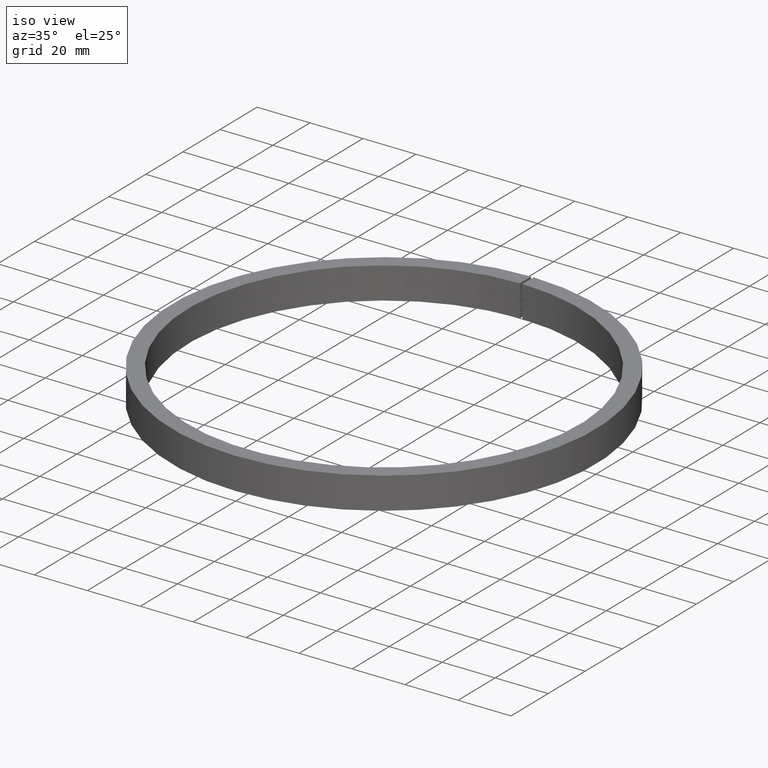
[diagram: clean part render]
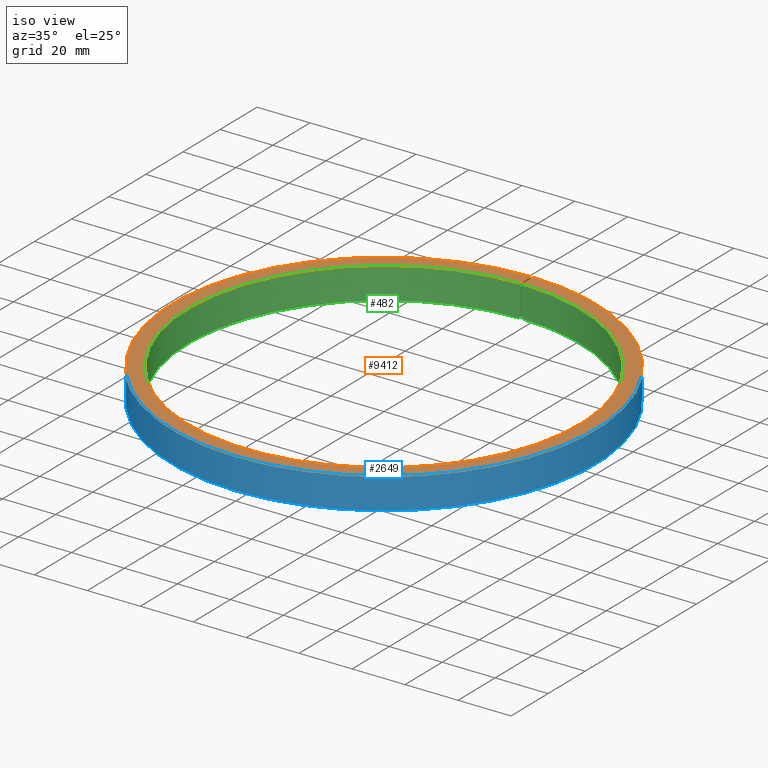
[diagram: same view with three faces highlighted in distinct colors, each labeled with its STEP entity id]
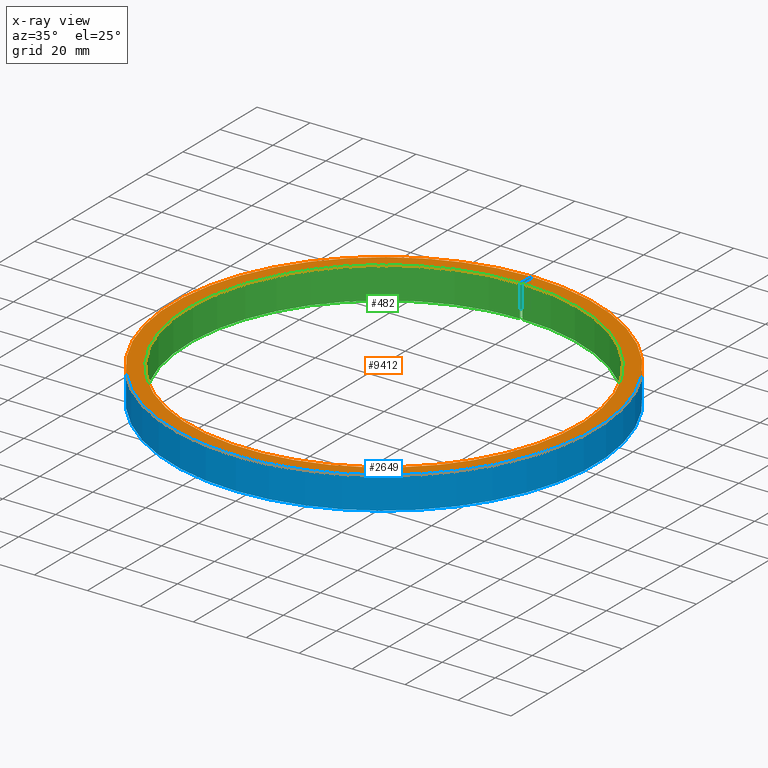
[diagram: x-ray of the same camera — body ghosted, the three highlighted faces saturated]
A machine part, iso view with three faces highlighted in distinct colors.
The next image is the same camera in x-ray (body ghosted, the three faces saturated) — at least one of them is partly hidden behind the body in this view.
Their STEP definitions:

[orange] entity #9412 — the highlighted planar face has unit normal (-0, 0, -1).
#108 = EDGE_CURVE ( 'NONE', #1116, #1750, #9698, .T. ) ;
#815 = ORIENTED_EDGE ( 'NONE', *, *, #1857, .T. ) ;
#991 = DIRECTION ( 'NONE',  ( -0.0000000000000000000, 0.0000000000000000000, -1.000000000000000000 ) ) ;
#1067 = PLANE ( 'NONE',  #3855 ) ;
#1116 = VERTEX_POINT ( 'NONE', #7466 ) ;
#1322 = VECTOR ( 'NONE', #9336, 1000.000000000000000 ) ;
#1672 = DIRECTION ( 'NONE',  ( -0.0000000000000000000, -0.0000000000000000000, -1.000000000000000000 ) ) ;
#1750 = VERTEX_POINT ( 'NONE', #8199 ) ;
#1857 = EDGE_CURVE ( 'NONE', #9003, #5778, #6665, .T. ) ;
#2479 = AXIS2_PLACEMENT_3D ( 'NONE', #10371, #1672, #9623 ) ;
#2637 = AXIS2_PLACEMENT_3D ( 'NONE', #8223, #2783, #10044 ) ;
#2783 = DIRECTION ( 'NONE',  ( -0.0000000000000000000, -0.0000000000000000000, -1.000000000000000000 ) ) ;
#3622 = CARTESIAN_POINT ( 'NONE',  ( -0.5000000000000000000, 79.99843748474091900, 5.999999999999999100 ) ) ;
#3673 = VECTOR ( 'NONE', #8370, 1000.000000000000000 ) ;
#3779 = CARTESIAN_POINT ( 'NONE',  ( 0.0000000000000000000, -74.00000000000001400, 5.999999999999998200 ) ) ;
#3855 = AXIS2_PLACEMENT_3D ( 'NONE', #3779, #991, #4718 ) ;
#4149 = ORIENTED_EDGE ( 'NONE', *, *, #108, .F. ) ;
#4188 = CARTESIAN_POINT ( 'NONE',  ( -0.5000000000000000000, 73.99831079153092600, 5.999999999999999100 ) ) ;
#4718 = DIRECTION ( 'NONE',  ( -1.000000000000000000, 0.0000000000000000000, 0.0000000000000000000 ) ) ;
#5679 = CARTESIAN_POINT ( 'NONE',  ( 0.5000000000000000000, 0.0000000000000000000, 5.999999999999999100 ) ) ;
#5778 = VERTEX_POINT ( 'NONE', #3622 ) ;
#5857 = ORIENTED_EDGE ( 'NONE', *, *, #9395, .T. ) ;
#6302 = FACE_OUTER_BOUND ( 'NONE', #7607, .T. ) ;
#6665 = LINE ( 'NONE', #8427, #1322 ) ;
#7289 = CIRCLE ( 'NONE', #2479, 80.00000000000000000 ) ;
#7466 = CARTESIAN_POINT ( 'NONE',  ( 0.5000000000000000000, 73.99831079153092600, 5.999999999999999100 ) ) ;
#7607 = EDGE_LOOP ( 'NONE', ( #9210, #4149, #5857, #815 ) ) ;
#7631 = EDGE_CURVE ( 'NONE', #1750, #5778, #7289, .T. ) ;
#8199 = CARTESIAN_POINT ( 'NONE',  ( 0.5000000000000000000, 79.99843748474091900, 5.999999999999998200 ) ) ;
#8223 = CARTESIAN_POINT ( 'NONE',  ( 0.0000000000000000000, 0.0000000000000000000, 5.999999999999999100 ) ) ;
#8370 = DIRECTION ( 'NONE',  ( 0.0000000000000000000, 1.000000000000000000, -0.0000000000000000000 ) ) ;
#8427 = CARTESIAN_POINT ( 'NONE',  ( -0.5000000000000000000, 0.0000000000000000000, 5.999999999999999100 ) ) ;
#9003 = VERTEX_POINT ( 'NONE', #4188 ) ;
#9210 = ORIENTED_EDGE ( 'NONE', *, *, #7631, .F. ) ;
#9336 = DIRECTION ( 'NONE',  ( 0.0000000000000000000, 1.000000000000000000, -0.0000000000000000000 ) ) ;
#9395 = EDGE_CURVE ( 'NONE', #1116, #9003, #9804, .T. ) ;
#9412 = ADVANCED_FACE ( 'NONE', ( #6302 ), #1067, .F. ) ;
#9623 = DIRECTION ( 'NONE',  ( -1.000000000000000000, 0.0000000000000000000, 0.0000000000000000000 ) ) ;
#9698 = LINE ( 'NONE', #5679, #3673 ) ;
#9804 = CIRCLE ( 'NONE', #2637, 74.00000000000001400 ) ;
#10044 = DIRECTION ( 'NONE',  ( -1.000000000000000000, 0.0000000000000000000, 0.0000000000000000000 ) ) ;
#10371 = CARTESIAN_POINT ( 'NONE',  ( 0.0000000000000000000, 0.0000000000000000000, 5.999999999999998200 ) ) ;

[blue] entity #2649 — the highlighted cylindrical surface (partial cylindrical patch) has radius 80 mm, axis along (-0, -0, -1).
#47 = DIRECTION ( 'NONE',  ( -1.000000000000000000, 0.0000000000000000000, 0.0000000000000000000 ) ) ;
#615 = CYLINDRICAL_SURFACE ( 'NONE', #4263, 80.00000000000000000 ) ;
#1672 = DIRECTION ( 'NONE',  ( -0.0000000000000000000, -0.0000000000000000000, -1.000000000000000000 ) ) ;
#1743 = FACE_OUTER_BOUND ( 'NONE', #11047, .T. ) ;
#1750 = VERTEX_POINT ( 'NONE', #8199 ) ;
#2330 = AXIS2_PLACEMENT_3D ( 'NONE', #4516, #8058, #47 ) ;
#2479 = AXIS2_PLACEMENT_3D ( 'NONE', #10371, #1672, #9623 ) ;
#2649 = ADVANCED_FACE ( 'NONE', ( #1743 ), #615, .T. ) ;
#3459 = DIRECTION ( 'NONE',  ( -0.0000000000000000000, -0.0000000000000000000, 1.000000000000000000 ) ) ;
#3537 = CARTESIAN_POINT ( 'NONE',  ( 0.5000000000000000000, 79.99843748474091900, -6.000000000000001800 ) ) ;
#3622 = CARTESIAN_POINT ( 'NONE',  ( -0.5000000000000000000, 79.99843748474091900, 5.999999999999999100 ) ) ;
#4088 = EDGE_CURVE ( 'NONE', #6516, #5778, #10712, .T. ) ;
#4263 = AXIS2_PLACEMENT_3D ( 'NONE', #4349, #5244, #4427 ) ;
#4349 = CARTESIAN_POINT ( 'NONE',  ( 0.0000000000000000000, 0.0000000000000000000, 0.0000000000000000000 ) ) ;
#4427 = DIRECTION ( 'NONE',  ( -1.000000000000000000, 0.0000000000000000000, 0.0000000000000000000 ) ) ;
#4516 = CARTESIAN_POINT ( 'NONE',  ( 0.0000000000000000000, 0.0000000000000000000, -6.000000000000001800 ) ) ;
#4972 = VERTEX_POINT ( 'NONE', #10557 ) ;
#5244 = DIRECTION ( 'NONE',  ( -0.0000000000000000000, -0.0000000000000000000, -1.000000000000000000 ) ) ;
#5352 = ORIENTED_EDGE ( 'NONE', *, *, #7103, .T. ) ;
#5482 = DIRECTION ( 'NONE',  ( -0.0000000000000000000, -0.0000000000000000000, 1.000000000000000000 ) ) ;
#5596 = CARTESIAN_POINT ( 'NONE',  ( -0.5000000000000000000, 79.99843748474091900, -6.000000000000001800 ) ) ;
#5778 = VERTEX_POINT ( 'NONE', #3622 ) ;
#6475 = LINE ( 'NONE', #3537, #8837 ) ;
#6516 = VERTEX_POINT ( 'NONE', #7600 ) ;
#6600 = ORIENTED_EDGE ( 'NONE', *, *, #6668, .F. ) ;
#6617 = CIRCLE ( 'NONE', #2330, 80.00000000000000000 ) ;
#6668 = EDGE_CURVE ( 'NONE', #4972, #6516, #6617, .T. ) ;
#7103 = EDGE_CURVE ( 'NONE', #4972, #1750, #6475, .T. ) ;
#7289 = CIRCLE ( 'NONE', #2479, 80.00000000000000000 ) ;
#7473 = VECTOR ( 'NONE', #5482, 1000.000000000000000 ) ;
#7600 = CARTESIAN_POINT ( 'NONE',  ( -0.5000000000000000000, 79.99843748474091900, -6.000000000000001800 ) ) ;
#7631 = EDGE_CURVE ( 'NONE', #1750, #5778, #7289, .T. ) ;
#8058 = DIRECTION ( 'NONE',  ( -0.0000000000000000000, -0.0000000000000000000, -1.000000000000000000 ) ) ;
#8199 = CARTESIAN_POINT ( 'NONE',  ( 0.5000000000000000000, 79.99843748474091900, 5.999999999999998200 ) ) ;
#8837 = VECTOR ( 'NONE', #3459, 1000.000000000000000 ) ;
#9157 = ORIENTED_EDGE ( 'NONE', *, *, #7631, .T. ) ;
#9623 = DIRECTION ( 'NONE',  ( -1.000000000000000000, 0.0000000000000000000, 0.0000000000000000000 ) ) ;
#9941 = ORIENTED_EDGE ( 'NONE', *, *, #4088, .F. ) ;
#10371 = CARTESIAN_POINT ( 'NONE',  ( 0.0000000000000000000, 0.0000000000000000000, 5.999999999999998200 ) ) ;
#10557 = CARTESIAN_POINT ( 'NONE',  ( 0.5000000000000000000, 79.99843748474091900, -6.000000000000001800 ) ) ;
#10712 = LINE ( 'NONE', #5596, #7473 ) ;
#11047 = EDGE_LOOP ( 'NONE', ( #6600, #5352, #9157, #9941 ) ) ;

[green] entity #482 — the highlighted cylindrical surface (partial cylindrical patch) has radius 74 mm, axis along (-0, -0, -1).
#157 = VECTOR ( 'NONE', #4686, 1000.000000000000000 ) ;
#421 = ORIENTED_EDGE ( 'NONE', *, *, #6963, .T. ) ;
#482 = ADVANCED_FACE ( 'NONE', ( #5769 ), #3385, .F. ) ;
#1116 = VERTEX_POINT ( 'NONE', #7466 ) ;
#1581 = DIRECTION ( 'NONE',  ( -1.000000000000000000, 0.0000000000000000000, 0.0000000000000000000 ) ) ;
#1834 = DIRECTION ( 'NONE',  ( -0.0000000000000000000, -0.0000000000000000000, -1.000000000000000000 ) ) ;
#1873 = DIRECTION ( 'NONE',  ( -1.000000000000000000, 0.0000000000000000000, 0.0000000000000000000 ) ) ;
#2016 = EDGE_CURVE ( 'NONE', #4889, #3040, #3288, .T. ) ;
#2637 = AXIS2_PLACEMENT_3D ( 'NONE', #8223, #2783, #10044 ) ;
#2783 = DIRECTION ( 'NONE',  ( -0.0000000000000000000, -0.0000000000000000000, -1.000000000000000000 ) ) ;
#3040 = VERTEX_POINT ( 'NONE', #3973 ) ;
#3041 = EDGE_CURVE ( 'NONE', #4889, #1116, #10873, .T. ) ;
#3126 = CARTESIAN_POINT ( 'NONE',  ( 0.5000000000000000000, 73.99831079153092600, -6.000000000000001800 ) ) ;
#3288 = CIRCLE ( 'NONE', #11334, 74.00000000000001400 ) ;
#3385 = CYLINDRICAL_SURFACE ( 'NONE', #8364, 74.00000000000001400 ) ;
#3973 = CARTESIAN_POINT ( 'NONE',  ( -0.5000000000000000000, 73.99831079153092600, -6.000000000000001800 ) ) ;
#4188 = CARTESIAN_POINT ( 'NONE',  ( -0.5000000000000000000, 73.99831079153092600, 5.999999999999999100 ) ) ;
#4581 = CARTESIAN_POINT ( 'NONE',  ( -0.5000000000000000000, 73.99831079153092600, -6.000000000000001800 ) ) ;
#4686 = DIRECTION ( 'NONE',  ( -0.0000000000000000000, -0.0000000000000000000, 1.000000000000000000 ) ) ;
#4838 = VECTOR ( 'NONE', #4915, 1000.000000000000000 ) ;
#4889 = VERTEX_POINT ( 'NONE', #5804 ) ;
#4915 = DIRECTION ( 'NONE',  ( -0.0000000000000000000, -0.0000000000000000000, 1.000000000000000000 ) ) ;
#4990 = ORIENTED_EDGE ( 'NONE', *, *, #3041, .F. ) ;
#5103 = ORIENTED_EDGE ( 'NONE', *, *, #2016, .T. ) ;
#5588 = EDGE_LOOP ( 'NONE', ( #8751, #4990, #5103, #421 ) ) ;
#5769 = FACE_OUTER_BOUND ( 'NONE', #5588, .T. ) ;
#5804 = CARTESIAN_POINT ( 'NONE',  ( 0.5000000000000000000, 73.99831079153092600, -6.000000000000001800 ) ) ;
#6257 = CARTESIAN_POINT ( 'NONE',  ( 0.0000000000000000000, 0.0000000000000000000, -6.000000000000000900 ) ) ;
#6963 = EDGE_CURVE ( 'NONE', #3040, #9003, #8541, .T. ) ;
#7466 = CARTESIAN_POINT ( 'NONE',  ( 0.5000000000000000000, 73.99831079153092600, 5.999999999999999100 ) ) ;
#8127 = CARTESIAN_POINT ( 'NONE',  ( 0.0000000000000000000, 0.0000000000000000000, 0.0000000000000000000 ) ) ;
#8223 = CARTESIAN_POINT ( 'NONE',  ( 0.0000000000000000000, 0.0000000000000000000, 5.999999999999999100 ) ) ;
#8364 = AXIS2_PLACEMENT_3D ( 'NONE', #8127, #1834, #1873 ) ;
#8541 = LINE ( 'NONE', #4581, #157 ) ;
#8751 = ORIENTED_EDGE ( 'NONE', *, *, #9395, .F. ) ;
#9003 = VERTEX_POINT ( 'NONE', #4188 ) ;
#9395 = EDGE_CURVE ( 'NONE', #1116, #9003, #9804, .T. ) ;
#9804 = CIRCLE ( 'NONE', #2637, 74.00000000000001400 ) ;
#9818 = DIRECTION ( 'NONE',  ( -0.0000000000000000000, -0.0000000000000000000, -1.000000000000000000 ) ) ;
#10044 = DIRECTION ( 'NONE',  ( -1.000000000000000000, 0.0000000000000000000, 0.0000000000000000000 ) ) ;
#10873 = LINE ( 'NONE', #3126, #4838 ) ;
#11334 = AXIS2_PLACEMENT_3D ( 'NONE', #6257, #9818, #1581 ) ;